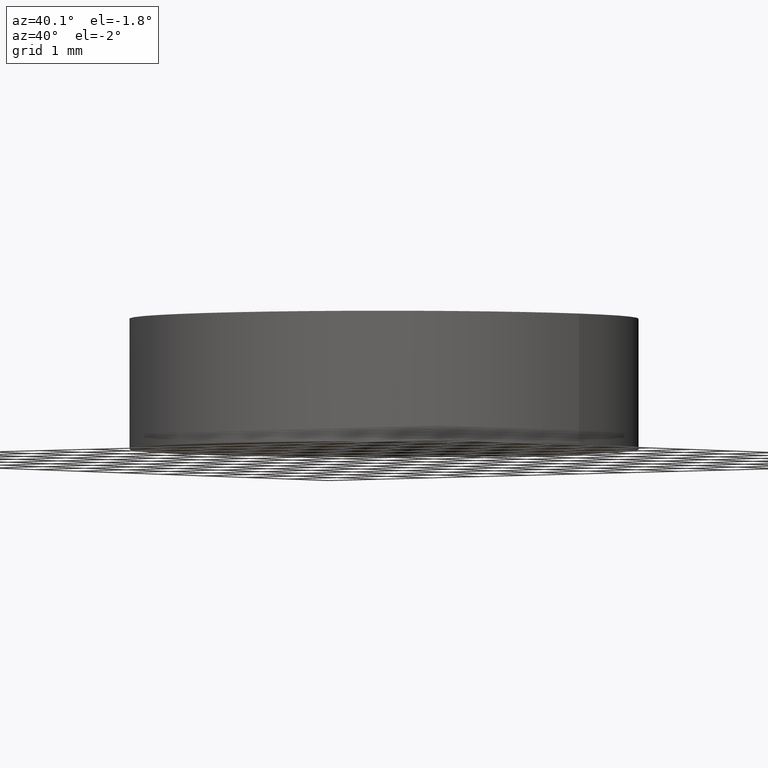
[diagram: clean part render]
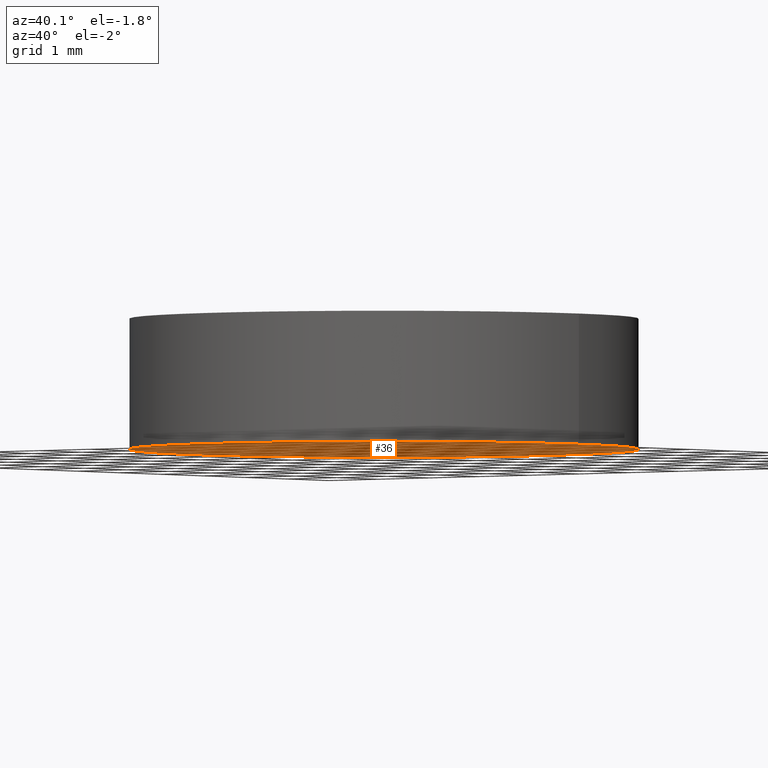
[diagram: same view with one face highlighted and labeled with its STEP entity id]
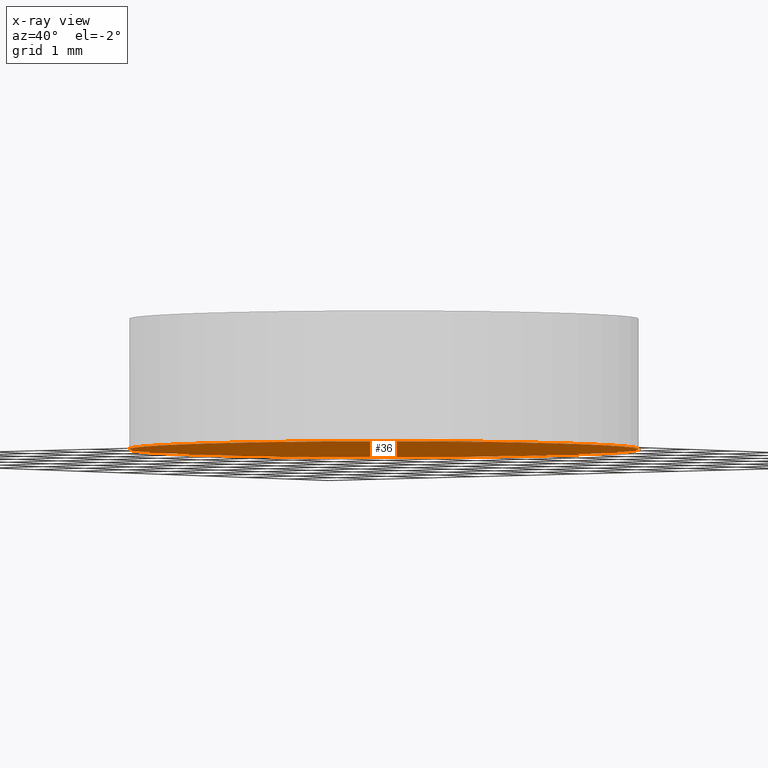
[diagram: x-ray of the same camera — body ghosted, the highlighted face saturated]
A machine part, auxiliary view. The second image highlights one B-rep face of the part: STEP entity #36.
The next image is the same camera in x-ray: the body ghosted, the highlighted face saturated — about 0% of this face is hidden behind the body in this view.
In plain terms, the highlighted planar face has unit normal (0, 0, 1).
Its self-contained STEP definition (entity closure, byte-faithful):
#17=FACE_OUTER_BOUND('',#20,.T.);
#20=EDGE_LOOP('',(#30));
#24=CIRCLE('',#42,3.9);
#26=VERTEX_POINT('',#60);
#28=EDGE_CURVE('',#26,#26,#24,.T.);
#30=ORIENTED_EDGE('',*,*,#28,.T.);
#34=PLANE('',#41);
#36=ADVANCED_FACE('',(#17),#34,.F.);
#41=AXIS2_PLACEMENT_3D('',#59,#48,#49);
#42=AXIS2_PLACEMENT_3D('',#61,#50,#51);
#48=DIRECTION('center_axis',(0.,0.,1.));
#49=DIRECTION('ref_axis',(1.,0.,0.));
#50=DIRECTION('center_axis',(0.,0.,-1.));
#51=DIRECTION('ref_axis',(-1.,0.,0.));
#59=CARTESIAN_POINT('Origin',(-2.77028162986211E-16,0.,-1.));
#60=CARTESIAN_POINT('',(3.9,4.77612251667468E-16,-1.));
#61=CARTESIAN_POINT('Origin',(0.,0.,-1.));